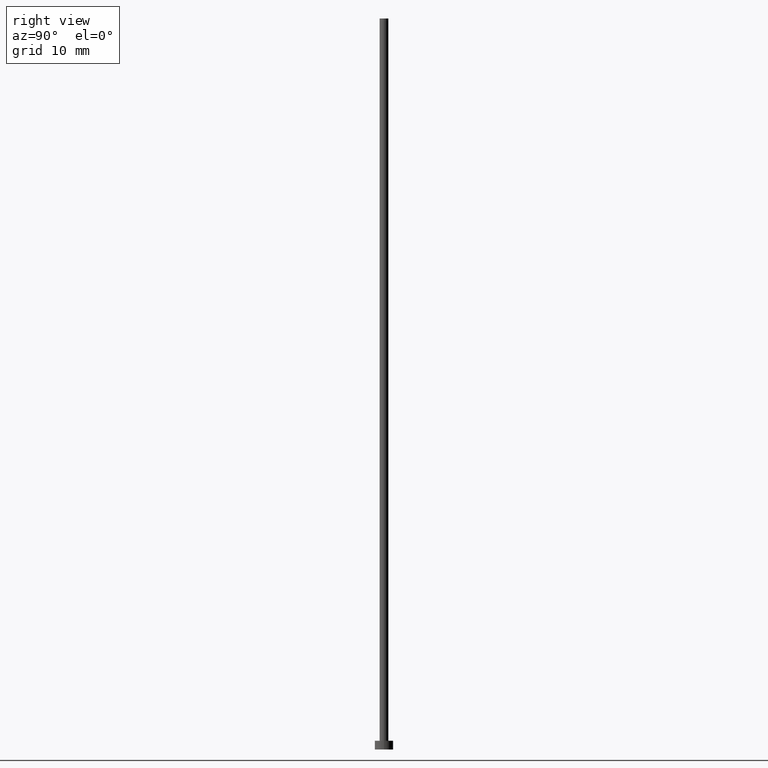
[diagram: clean part render]
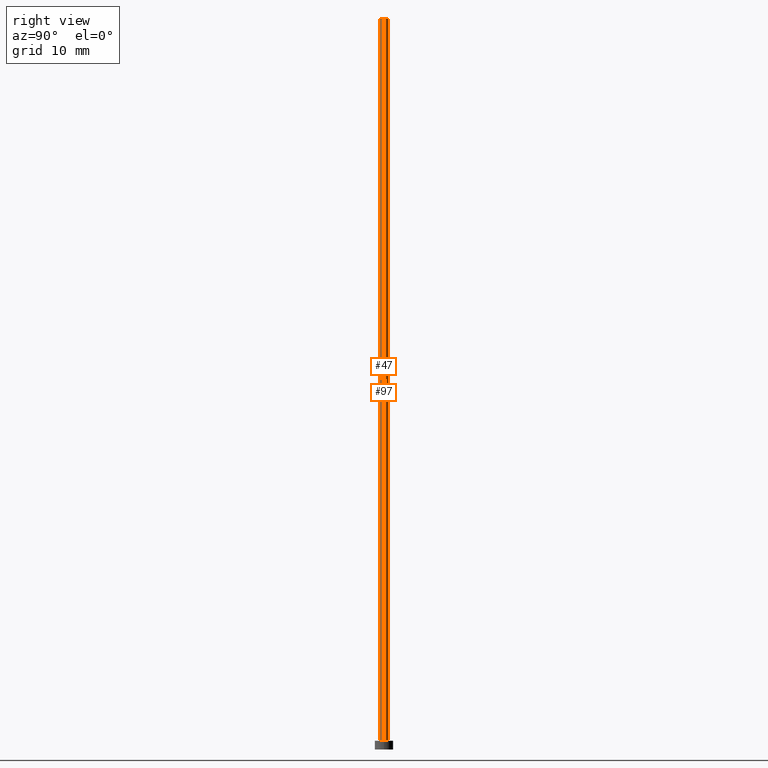
[diagram: same view with one multi-face feature highlighted, each face labeled with its STEP entity id]
A machine part, right view. The highlighted faces form ONE feature: a constant-radius fillet chain: 2 tangent blend faces with common blend radius 0.6 mm. The faces share edges in the B-rep.
Their STEP definitions:
[1] entity #97 (Cylinder):
#3 = ORIENTED_EDGE ( 'NONE', *, *, #179, .T. ) ;
#7 = VERTEX_POINT ( 'NONE', #85 ) ;
#10 = DIRECTION ( 'NONE',  ( 1.000000000000000000, 0.000000000000000000, 0.000000000000000000 ) ) ;
#12 = CARTESIAN_POINT ( 'NONE',  ( -0.5999999999999999778, 0.000000000000000000, 1.199999999999999956 ) ) ;
#14 = CARTESIAN_POINT ( 'NONE',  ( 0.000000000000000000, 0.000000000000000000, 99.79999999999999716 ) ) ;
#21 = DIRECTION ( 'NONE',  ( 1.000000000000000000, 0.000000000000000000, 0.000000000000000000 ) ) ;
#32 = EDGE_CURVE ( 'NONE', #83, #42, #145, .T. ) ;
#40 = EDGE_CURVE ( 'NONE', #7, #46, #214, .T. ) ;
#42 = VERTEX_POINT ( 'NONE', #12 ) ;
#46 = VERTEX_POINT ( 'NONE', #128 ) ;
#58 = AXIS2_PLACEMENT_3D ( 'NONE', #112, #171, #10 ) ;
#65 = AXIS2_PLACEMENT_3D ( 'NONE', #14, #108, #253 ) ;
#83 = VERTEX_POINT ( 'NONE', #233 ) ;
#85 = CARTESIAN_POINT ( 'NONE',  ( 0.5999999999999999778, 7.347880794884117764E-17, 99.79999999999999716 ) ) ;
#97 = ADVANCED_FACE ( 'NONE', ( #192 ), #193, .T. ) ;
#99 = VECTOR ( 'NONE', #252, 1000.000000000000000 ) ;
#108 = DIRECTION ( 'NONE',  ( -0.000000000000000000, -0.000000000000000000, -1.000000000000000000 ) ) ;
#112 = CARTESIAN_POINT ( 'NONE',  ( 0.000000000000000000, 0.000000000000000000, 1.199999999999999956 ) ) ;
#120 = CARTESIAN_POINT ( 'NONE',  ( 0.000000000000000000, 0.000000000000000000, 99.79999999999999716 ) ) ;
#128 = CARTESIAN_POINT ( 'NONE',  ( 0.5999999999999999778, 7.347880794884117764E-17, 1.199999999999999956 ) ) ;
#145 = LINE ( 'NONE', #148, #99 ) ;
#148 = CARTESIAN_POINT ( 'NONE',  ( -0.5999999999999999778, 0.000000000000000000, 99.79999999999999716 ) ) ;
#158 = ORIENTED_EDGE ( 'NONE', *, *, #32, .F. ) ;
#160 = EDGE_LOOP ( 'NONE', ( #221, #201, #3, #158 ) ) ;
#161 = CIRCLE ( 'NONE', #58, 0.5999999999999999778 ) ;
#171 = DIRECTION ( 'NONE',  ( 0.000000000000000000, 0.000000000000000000, 1.000000000000000000 ) ) ;
#179 = EDGE_CURVE ( 'NONE', #46, #42, #161, .T. ) ;
#185 = AXIS2_PLACEMENT_3D ( 'NONE', #120, #236, #21 ) ;
#192 = FACE_OUTER_BOUND ( 'NONE', #160, .T. ) ;
#193 = CYLINDRICAL_SURFACE ( 'NONE', #65, 0.5999999999999999778 ) ;
#201 = ORIENTED_EDGE ( 'NONE', *, *, #40, .T. ) ;
#210 = CARTESIAN_POINT ( 'NONE',  ( 0.5999999999999999778, 7.347880794884117764E-17, 99.79999999999999716 ) ) ;
#214 = LINE ( 'NONE', #210, #240 ) ;
#221 = ORIENTED_EDGE ( 'NONE', *, *, #230, .F. ) ;
#223 = CIRCLE ( 'NONE', #185, 0.5999999999999999778 ) ;
#230 = EDGE_CURVE ( 'NONE', #7, #83, #223, .T. ) ;
#233 = CARTESIAN_POINT ( 'NONE',  ( -0.5999999999999999778, 0.000000000000000000, 99.79999999999999716 ) ) ;
#234 = DIRECTION ( 'NONE',  ( -0.000000000000000000, -0.000000000000000000, -1.000000000000000000 ) ) ;
#236 = DIRECTION ( 'NONE',  ( 0.000000000000000000, 0.000000000000000000, 1.000000000000000000 ) ) ;
#240 = VECTOR ( 'NONE', #234, 1000.000000000000000 ) ;
#252 = DIRECTION ( 'NONE',  ( -0.000000000000000000, -0.000000000000000000, -1.000000000000000000 ) ) ;
#253 = DIRECTION ( 'NONE',  ( -1.000000000000000000, 0.000000000000000000, 0.000000000000000000 ) ) ;
[2] entity #47 (Cylinder):
#7 = VERTEX_POINT ( 'NONE', #85 ) ;
#8 = EDGE_LOOP ( 'NONE', ( #138, #244, #229, #241 ) ) ;
#11 = CIRCLE ( 'NONE', #110, 0.5999999999999999778 ) ;
#12 = CARTESIAN_POINT ( 'NONE',  ( -0.5999999999999999778, 0.000000000000000000, 1.199999999999999956 ) ) ;
#32 = EDGE_CURVE ( 'NONE', #83, #42, #145, .T. ) ;
#40 = EDGE_CURVE ( 'NONE', #7, #46, #214, .T. ) ;
#42 = VERTEX_POINT ( 'NONE', #12 ) ;
#46 = VERTEX_POINT ( 'NONE', #128 ) ;
#47 = ADVANCED_FACE ( 'NONE', ( #124 ), #126, .T. ) ;
#50 = CARTESIAN_POINT ( 'NONE',  ( 0.000000000000000000, 0.000000000000000000, 99.79999999999999716 ) ) ;
#51 = DIRECTION ( 'NONE',  ( 1.000000000000000000, 0.000000000000000000, 0.000000000000000000 ) ) ;
#53 = CARTESIAN_POINT ( 'NONE',  ( 0.000000000000000000, 0.000000000000000000, 99.79999999999999716 ) ) ;
#56 = CIRCLE ( 'NONE', #200, 0.5999999999999999778 ) ;
#70 = EDGE_CURVE ( 'NONE', #42, #46, #11, .T. ) ;
#75 = DIRECTION ( 'NONE',  ( 0.000000000000000000, 0.000000000000000000, 1.000000000000000000 ) ) ;
#82 = EDGE_CURVE ( 'NONE', #83, #7, #56, .T. ) ;
#83 = VERTEX_POINT ( 'NONE', #233 ) ;
#85 = CARTESIAN_POINT ( 'NONE',  ( 0.5999999999999999778, 7.347880794884117764E-17, 99.79999999999999716 ) ) ;
#95 = CARTESIAN_POINT ( 'NONE',  ( 0.000000000000000000, 0.000000000000000000, 1.199999999999999956 ) ) ;
#99 = VECTOR ( 'NONE', #252, 1000.000000000000000 ) ;
#105 = AXIS2_PLACEMENT_3D ( 'NONE', #53, #248, #231 ) ;
#110 = AXIS2_PLACEMENT_3D ( 'NONE', #95, #167, #232 ) ;
#124 = FACE_OUTER_BOUND ( 'NONE', #8, .T. ) ;
#126 = CYLINDRICAL_SURFACE ( 'NONE', #105, 0.5999999999999999778 ) ;
#128 = CARTESIAN_POINT ( 'NONE',  ( 0.5999999999999999778, 7.347880794884117764E-17, 1.199999999999999956 ) ) ;
#138 = ORIENTED_EDGE ( 'NONE', *, *, #40, .F. ) ;
#145 = LINE ( 'NONE', #148, #99 ) ;
#148 = CARTESIAN_POINT ( 'NONE',  ( -0.5999999999999999778, 0.000000000000000000, 99.79999999999999716 ) ) ;
#167 = DIRECTION ( 'NONE',  ( 0.000000000000000000, 0.000000000000000000, 1.000000000000000000 ) ) ;
#200 = AXIS2_PLACEMENT_3D ( 'NONE', #50, #75, #51 ) ;
#210 = CARTESIAN_POINT ( 'NONE',  ( 0.5999999999999999778, 7.347880794884117764E-17, 99.79999999999999716 ) ) ;
#214 = LINE ( 'NONE', #210, #240 ) ;
#229 = ORIENTED_EDGE ( 'NONE', *, *, #32, .T. ) ;
#231 = DIRECTION ( 'NONE',  ( -1.000000000000000000, 0.000000000000000000, 0.000000000000000000 ) ) ;
#232 = DIRECTION ( 'NONE',  ( 1.000000000000000000, 0.000000000000000000, 0.000000000000000000 ) ) ;
#233 = CARTESIAN_POINT ( 'NONE',  ( -0.5999999999999999778, 0.000000000000000000, 99.79999999999999716 ) ) ;
#234 = DIRECTION ( 'NONE',  ( -0.000000000000000000, -0.000000000000000000, -1.000000000000000000 ) ) ;
#240 = VECTOR ( 'NONE', #234, 1000.000000000000000 ) ;
#241 = ORIENTED_EDGE ( 'NONE', *, *, #70, .T. ) ;
#244 = ORIENTED_EDGE ( 'NONE', *, *, #82, .F. ) ;
#248 = DIRECTION ( 'NONE',  ( -0.000000000000000000, -0.000000000000000000, -1.000000000000000000 ) ) ;
#252 = DIRECTION ( 'NONE',  ( -0.000000000000000000, -0.000000000000000000, -1.000000000000000000 ) ) ;